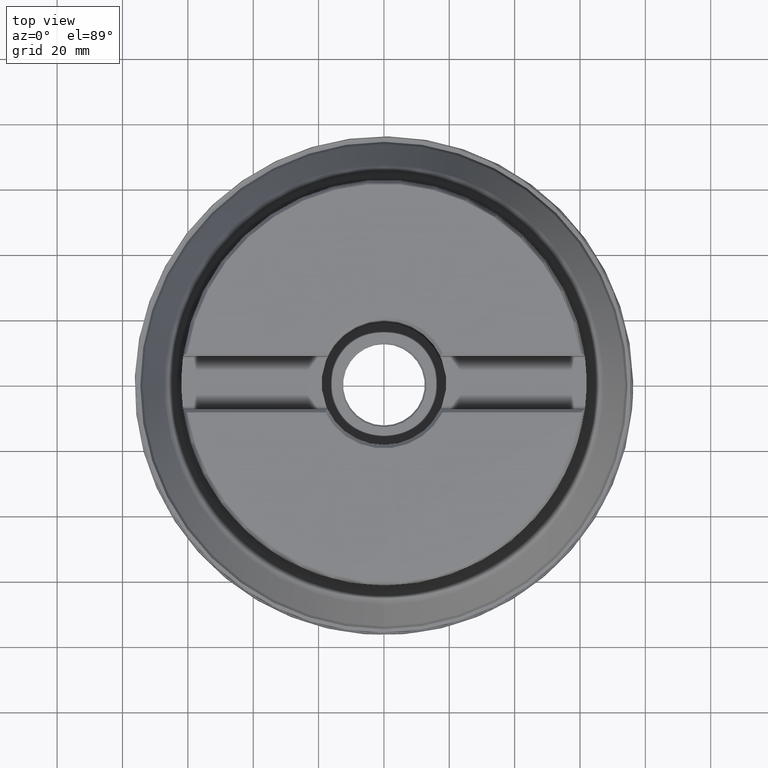
[diagram: clean part render]
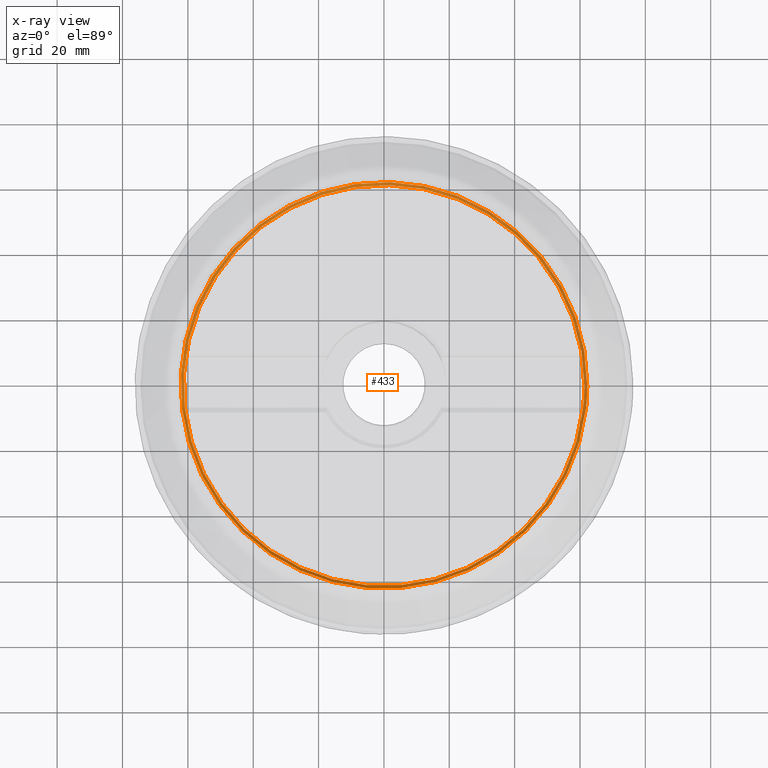
[diagram: x-ray — body ghosted, one internal face saturated and labeled with its STEP entity id]
A machine part, top view, then the same camera in x-ray: the body is ghosted and one INTERNAL B-rep face — a face not visible from any outside direction — is saturated and labeled: STEP entity #433.
In plain terms, the highlighted face is a SurfaceOfRevolution surface.
Its self-contained STEP definition (entity closure, byte-faithful):
#120=SURFACE_OF_REVOLUTION('',#222,#141);
#141=AXIS1_PLACEMENT('',#2467,#1590);
#222=LINE('',#2466,#252);
#252=VECTOR('',#1589,1.79261886643571);
#347=FACE_BOUND('',#595,.T.);
#348=FACE_BOUND('',#596,.T.);
#433=ADVANCED_FACE('',(#347,#348),#120,.F.);
#595=EDGE_LOOP('',(#835));
#596=EDGE_LOOP('',(#836));
#835=ORIENTED_EDGE('',*,*,#1062,.T.);
#836=ORIENTED_EDGE('',*,*,#1063,.F.);
#942=VERTEX_POINT('',#2451);
#943=VERTEX_POINT('',#2465);
#1062=EDGE_CURVE('',#942,#942,#1127,.T.);
#1063=EDGE_CURVE('',#943,#943,#1128,.T.);
#1127=CIRCLE('',#1312,61.3086397636393);
#1128=CIRCLE('',#1313,62.2182493354381);
#1312=AXIS2_PLACEMENT_3D('',#2450,#1584,#1585);
#1313=AXIS2_PLACEMENT_3D('',#2464,#1587,#1588);
#1584=DIRECTION('',(0.,0.,1.));
#1585=DIRECTION('',(1.,0.,0.));
#1587=DIRECTION('',(0.,0.,1.));
#1588=DIRECTION('',(1.,0.,0.));
#1589=DIRECTION('',(-0.527473930872407,-0.146033933443793,-0.836926127285404));
#1590=DIRECTION('',(0.,0.,1.));
#2450=CARTESIAN_POINT('',(0.,0.,7.59026424112779));
#2451=CARTESIAN_POINT('',(61.3086397636393,0.,7.59026424112779));
#2464=CARTESIAN_POINT('',(0.,0.,9.0905538067126));
#2465=CARTESIAN_POINT('',(62.2182493354381,0.,9.0905538067126));
#2466=CARTESIAN_POINT('',(61.8344777641853,-6.89984854886093,9.0905538067126));
#2467=CARTESIAN_POINT('',(0.,0.,0.));